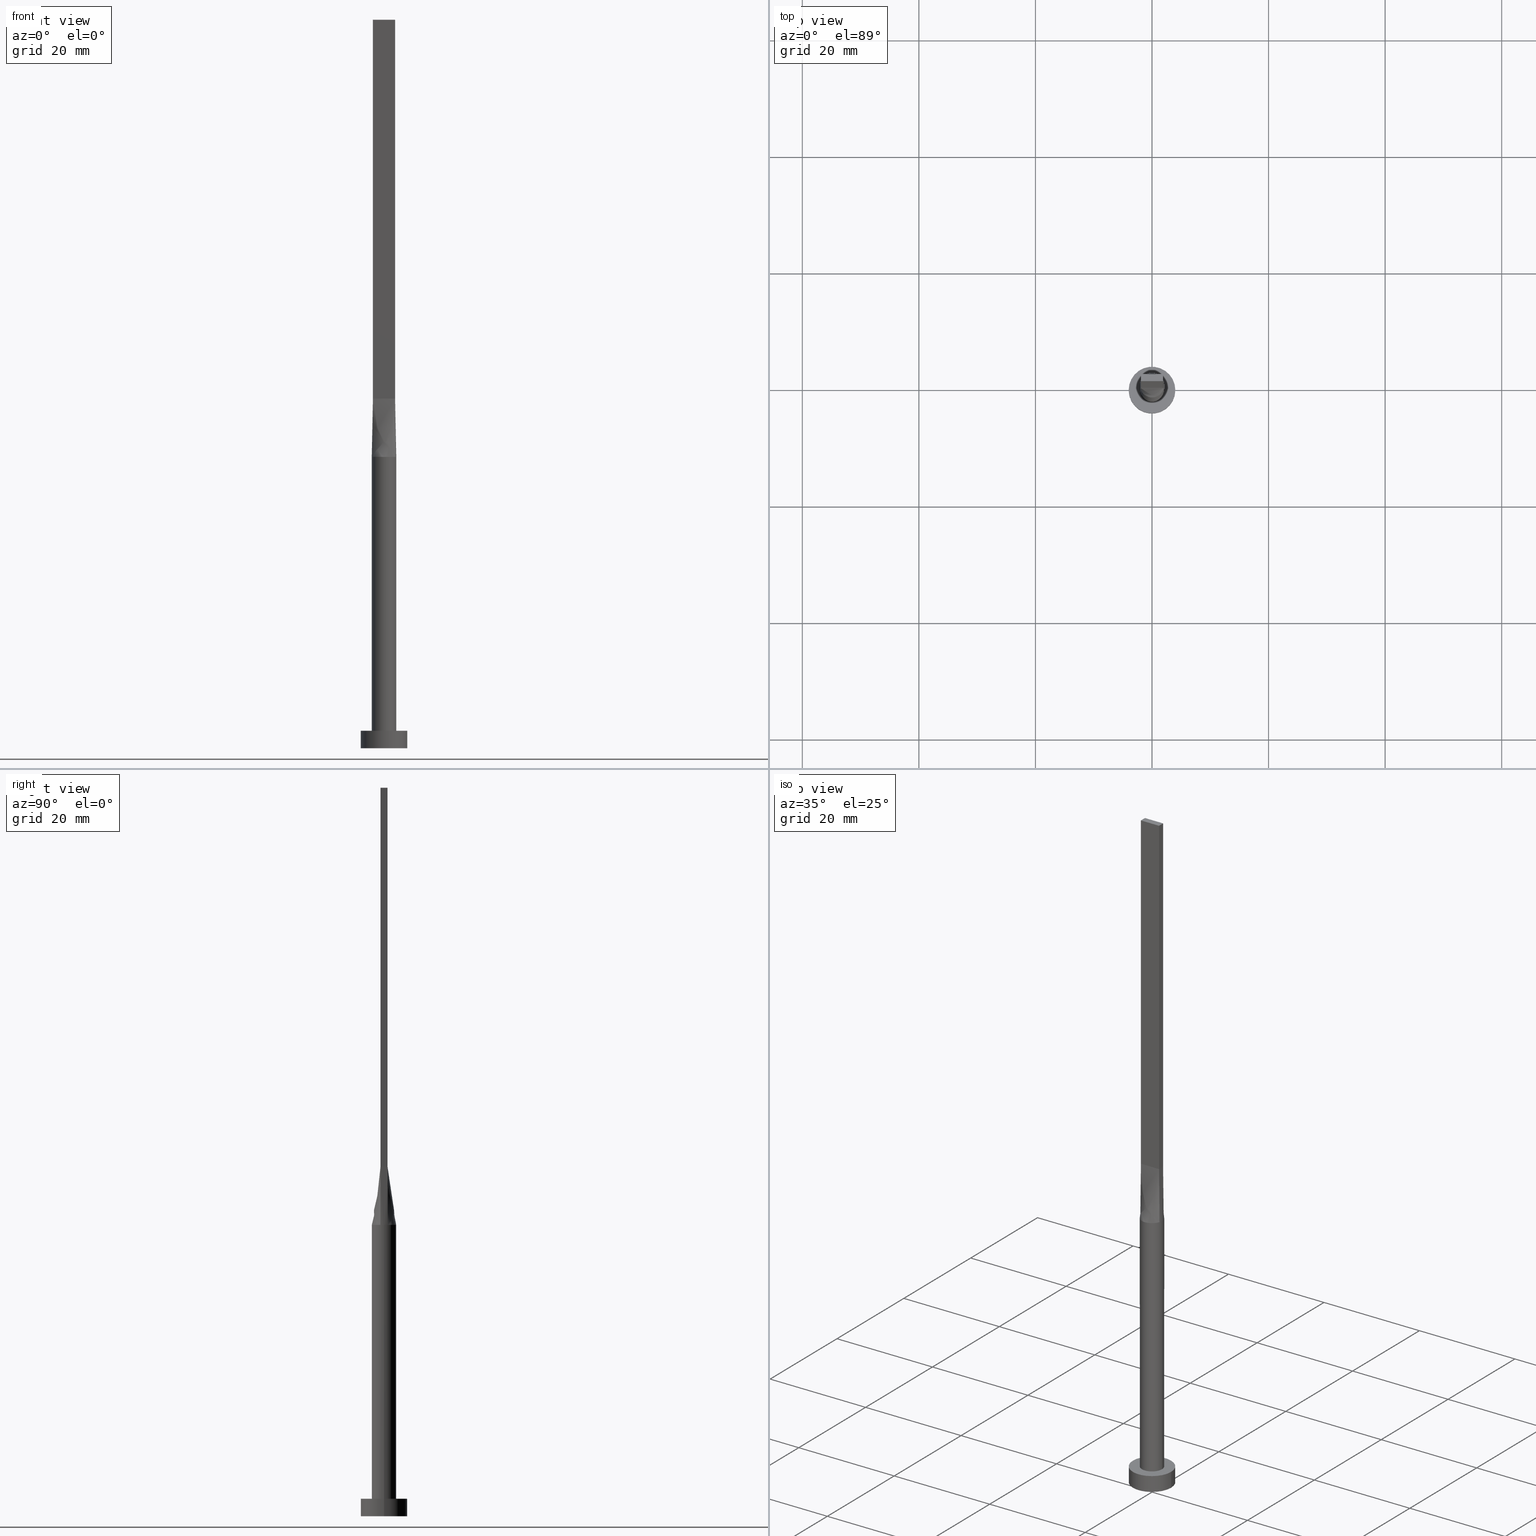
[diagram: canonical four-view strip — front | top / right | iso, engineering-drawing reading convention]
A machine part, canonical four-view strip (front | top / right | iso — engineering-drawing reading convention). The complete STEP part file that produces these views, byte-faithful:
ISO-10303-21;
HEADER;
FILE_DESCRIPTION (( 'STEP AP203' ),
    '1' );
FILE_NAME ('9fb5.STEP',
    '2023-02-13T11:24:17',
    ( '' ),
    ( '' ),
    'SwSTEP 2.0',
    'SolidWorks 2019',
    '' );
FILE_SCHEMA (( 'CONFIG_CONTROL_DESIGN' ));
ENDSEC;

DATA;
#1 = EDGE_CURVE ( 'NONE', #111, #281, #47, .T. ) ;
#2 = CARTESIAN_POINT ( 'NONE',  ( 0.000000000000000000, 0.000000000000000000, 3.000000000000000000 ) ) ;
#3 = ORIENTED_EDGE ( 'NONE', *, *, #518, .T. ) ;
#4 = ADVANCED_FACE ( 'NONE', ( #68 ), #58, .T. ) ;
#5 = CARTESIAN_POINT ( 'NONE',  ( -0.3166666666666642094, -0.5999999999999996447, 60.00000000000000000 ) ) ;
#6 = ORIENTED_EDGE ( 'NONE', *, *, #461, .T. ) ;
#7 = LINE ( 'NONE', #376, #448 ) ;
#8 = APPLICATION_CONTEXT ( 'configuration controlled 3d designs of mechanical parts and assemblies' ) ;
#9 = CYLINDRICAL_SURFACE ( 'NONE', #352, 2.100000000000000089 ) ;
#10 = CARTESIAN_POINT ( 'NONE',  ( -1.266666666666664831, -0.5999999999999996447, 60.00000000000000000 ) ) ;
#11 = APPROVAL ( #87, 'NEUR�EN�' ) ;
#12 = DIRECTION ( 'NONE',  ( 5.706327223607920020E-17, 1.000000000000000000, -0.000000000000000000 ) ) ;
#13 = AXIS2_PLACEMENT_3D ( 'NONE', #572, #199, #297 ) ;
#14 = VERTEX_POINT ( 'NONE', #28 ) ;
#15 = ORIENTED_EDGE ( 'NONE', *, *, #1, .F. ) ;
#16 = CARTESIAN_POINT ( 'NONE',  ( -0.5124799074986362557, 2.051574327850739454, 50.00000000000000000 ) ) ;
#17 = CARTESIAN_POINT ( 'NONE',  ( 2.002523596781697890, -0.6323758726679050701, 50.00000000000000000 ) ) ;
#18 = EDGE_LOOP ( 'NONE', ( #174, #410 ) ) ;
#19 = DIRECTION ( 'NONE',  ( -1.000000000000000000, -0.000000000000000000, -0.000000000000000000 ) ) ;
#20 = CARTESIAN_POINT ( 'NONE',  ( 0.3166666666666688168, -0.5999999999999996447, 60.00000000000000000 ) ) ;
#21 = CYLINDRICAL_SURFACE ( 'NONE', #407, 4.000000000000000000 ) ;
#22 = VERTEX_POINT ( 'NONE', #385 ) ;
#23 = COORDINATED_UNIVERSAL_TIME_OFFSET ( 1, 0, .AHEAD. ) ;
#24 = DIRECTION ( 'NONE',  ( 1.000000000000000000, 0.000000000000000000, 0.000000000000000000 ) ) ;
#25 = VECTOR ( 'NONE', #160, 1000.000000000000114 ) ;
#26 = EDGE_CURVE ( 'NONE', #263, #111, #539, .T. ) ;
#27 = ORIENTED_EDGE ( 'NONE', *, *, #178, .T. ) ;
#28 = CARTESIAN_POINT ( 'NONE',  ( -4.000000000000000000, 0.000000000000000000, 3.000000000000000000 ) ) ;
#29 = ORIENTED_EDGE ( 'NONE', *, *, #419, .F. ) ;
#30 = DIRECTION ( 'NONE',  ( 0.000000000000000000, -1.000000000000000000, 0.000000000000000000 ) ) ;
#31 = ORIENTED_EDGE ( 'NONE', *, *, #48, .F. ) ;
#32 = PERSON_AND_ORGANIZATION_ROLE ( 'classification_officer' ) ;
#33 = EDGE_CURVE ( 'NONE', #14, #285, #214, .T. ) ;
#34 = CARTESIAN_POINT ( 'NONE',  ( 0.5124799074986362557, 2.051574327850739454, 50.00000000000000711 ) ) ;
#35 = AXIS2_PLACEMENT_3D ( 'NONE', #220, #543, #396 ) ;
#36 = EDGE_LOOP ( 'NONE', ( #278, #435, #554, #320, #258 ) ) ;
#37 = CARTESIAN_POINT ( 'NONE',  ( 0.000000000000000000, 0.000000000000000000, 0.000000000000000000 ) ) ;
#38 = ORIENTED_EDGE ( 'NONE', *, *, #33, .T. ) ;
#39 = EDGE_CURVE ( 'NONE', #126, #111, #172, .T. ) ;
#40 = EDGE_LOOP ( 'NONE', ( #273, #460, #38, #100 ) ) ;
#41 = DIRECTION ( 'NONE',  ( -5.421010862427522170E-16, -1.000000000000000000, 0.000000000000000000 ) ) ;
#42 = EDGE_CURVE ( 'NONE', #263, #298, #336, .T. ) ;
#43 = LOCAL_TIME ( 12, 24, 17.00000000000000000, #275 ) ;
#44 = CIRCLE ( 'NONE', #512, 4.000000000000000000 ) ;
#45 = CIRCLE ( 'NONE', #394, 2.100000000000000089 ) ;
#46 = DIRECTION ( 'NONE',  ( -0.000000000000000000, -0.000000000000000000, -1.000000000000000000 ) ) ;
#47 = LINE ( 'NONE', #474, #272 ) ;
#48 = EDGE_CURVE ( 'NONE', #22, #576, #437, .T. ) ;
#49 = PLANE ( 'NONE',  #265 ) ;
#50 = ORIENTED_EDGE ( 'NONE', *, *, #526, .T. ) ;
#51 = AXIS2_PLACEMENT_3D ( 'NONE', #355, #167, #123 ) ;
#52 = DIRECTION ( 'NONE',  ( 1.000000000000000000, -1.776356839400250465E-15, 0.000000000000000000 ) ) ;
#53 = CARTESIAN_POINT ( 'NONE',  ( -0.1583333333333310500, -0.5999999999999996447, 60.00000000000000000 ) ) ;
#54 = PRODUCT_DEFINITION_SHAPE ( 'NONE', 'NONE',  #241 ) ;
#55 = DIRECTION ( 'NONE',  ( 0.000000000000000000, 0.000000000000000000, 1.000000000000000000 ) ) ;
#56 = CIRCLE ( 'NONE', #423, 4.000000000000000000 ) ;
#57 = DIRECTION ( 'NONE',  ( 1.000000000000000000, 0.000000000000000000, 0.000000000000000000 ) ) ;
#58 = CYLINDRICAL_SURFACE ( 'NONE', #208, 2.100000000000000089 ) ;
#59 = CARTESIAN_POINT ( 'NONE',  ( -2.099999999999999645, 0.2158003972066311338, 50.00000000000000711 ) ) ;
#60 = DIRECTION ( 'NONE',  ( -0.000000000000000000, -0.000000000000000000, -1.000000000000000000 ) ) ;
#61 = DIRECTION ( 'NONE',  ( -0.01025176717979719640, 0.003237400162041168764, 0.9999422085850171449 ) ) ;
#62 = CARTESIAN_POINT ( 'NONE',  ( 1.899999999999999689, -0.1999999999999992339, 60.00000000000000000 ) ) ;
#63 = ORIENTED_EDGE ( 'NONE', *, *, #549, .T. ) ;
#64 = CIRCLE ( 'NONE', #299, 4.000000000000000000 ) ;
#65 = CARTESIAN_POINT ( 'NONE',  ( -1.899999999999999689, 0.6000000000000001998, 60.00000000000000711 ) ) ;
#66 = DIRECTION ( 'NONE',  ( 0.000000000000000000, 0.000000000000000000, 1.000000000000000000 ) ) ;
#67 = APPROVAL ( #510, 'NEUR�EN�' ) ;
#68 = FACE_OUTER_BOUND ( 'NONE', #473, .T. ) ;
#69 = CARTESIAN_POINT ( 'NONE',  ( 1.108333333333334281, -0.5999999999999996447, 60.00000000000000000 ) ) ;
#70 = VERTEX_POINT ( 'NONE', #276 ) ;
#71 = ORGANIZATION ( 'NEUR�EN�', 'NEUR�EN�', '' ) ;
#72 = CARTESIAN_POINT ( 'NONE',  ( -0.1583333333333324378, 0.6000000000000000888, 60.00000000000001421 ) ) ;
#73 = CARTESIAN_POINT ( 'NONE',  ( 1.899999999999999023, -0.5999999999999997558, 125.0000000000000000 ) ) ;
#74 = CARTESIAN_POINT ( 'NONE',  ( 1.266666666666667274, -0.5999999999999996447, 60.00000000000000000 ) ) ;
#75 = PERSON_AND_ORGANIZATION ( #514, #71 ) ;
#76 = CARTESIAN_POINT ( 'NONE',  ( -1.741666666666666252, 0.6000000000000000888, 60.00000000000000000 ) ) ;
#77 = CARTESIAN_POINT ( 'NONE',  ( -1.899999999999999689, 0.6000000000000001998, 60.00000000000000711 ) ) ;
#78 = VERTEX_POINT ( 'NONE', #77 ) ;
#79 = EDGE_CURVE ( 'NONE', #366, #359, #267, .T. ) ;
#80 = PERSON_AND_ORGANIZATION ( #514, #71 ) ;
#81 = CALENDAR_DATE ( 2023, 13, 2 ) ;
#82 = ORIENTED_EDGE ( 'NONE', *, *, #89, .F. ) ;
#83 = APPLICATION_PROTOCOL_DEFINITION ( 'international standard', 'config_control_design', 1994, #424 ) ;
#84 = COORDINATED_UNIVERSAL_TIME_OFFSET ( 1, 0, .AHEAD. ) ;
#85 = CARTESIAN_POINT ( 'NONE',  ( 1.266666666666667274, 0.6000000000000000888, 60.00000000000000711 ) ) ;
#86 = VERTEX_POINT ( 'NONE', #417 ) ;
#87 = APPROVAL_STATUS ( 'not_yet_approved' ) ;
#88 = VECTOR ( 'NONE', #334, 1000.000000000000000 ) ;
#89 = EDGE_CURVE ( 'NONE', #359, #286, #463, .T. ) ;
#90 = ORIENTED_EDGE ( 'NONE', *, *, #284, .T. ) ;
#91 = AXIS2_PLACEMENT_3D ( 'NONE', #256, #347, #442 ) ;
#92 = ADVANCED_FACE ( 'NONE', ( #508 ), #277, .T. ) ;
#93 = B_SPLINE_SURFACE_WITH_KNOTS ( 'NONE', 3, 1, ( 
 ( #472, #239 ),
 ( #331, #425 ),
 ( #287, #246 ),
 ( #243, #10 ),
 ( #203, #375 ),
 ( #478, #383 ),
 ( #104, #95 ),
 ( #386, #5 ),
 ( #428, #53 ),
 ( #372, #249 ),
 ( #434, #20 ),
 ( #300, #447 ),
 ( #343, #491 ),
 ( #449, #69 ),
 ( #215, #74 ),
 ( #402, #349 ),
 ( #527, #110 ),
 ( #337, #332 ) ),
 .UNSPECIFIED., .F., .F., .F.,
 ( 4, 2, 2, 2, 2, 2, 2, 2, 4 ),
 ( 2, 2 ),
 ( 0.000000000000000000, 0.1250000000000000833, 0.2500000000000001110, 0.3750000000000001110, 0.5000000000000001110, 0.6250000000000001110, 0.7500000000000000000, 0.8750000000000000000, 1.000000000000000000 ),
 ( 0.000000000000000000, 1.000000000000000000 ),
 .UNSPECIFIED. ) ;
#94 = CARTESIAN_POINT ( 'NONE',  ( -0.9765948449220482885, 1.875594675604967509, 49.99999999999999289 ) ) ;
#95 = CARTESIAN_POINT ( 'NONE',  ( -0.6333333333333307502, -0.5999999999999996447, 60.00000000000000000 ) ) ;
#96 = EDGE_LOOP ( 'NONE', ( #63, #393, #312, #380 ) ) ;
#97 = DIRECTION ( 'NONE',  ( -1.807003620809174632E-16, -1.000000000000000000, 0.000000000000000000 ) ) ;
#98 = LOCAL_TIME ( 12, 24, 17.00000000000000000, #23 ) ;
#99 = VECTOR ( 'NONE', #97, 1000.000000000000000 ) ;
#100 = ORIENTED_EDGE ( 'NONE', *, *, #464, .T. ) ;
#101 = CARTESIAN_POINT ( 'NONE',  ( 1.899999999999999023, -0.5999999999999997558, 125.0000000000000000 ) ) ;
#102 = PRODUCT ( '9fb5', '9fb5', '', ( #416 ) ) ;
#103 = DIRECTION ( 'NONE',  ( -1.000000000000000000, 0.000000000000000000, 0.000000000000000000 ) ) ;
#104 = CARTESIAN_POINT ( 'NONE',  ( -0.9765948449220485106, -1.875594675604967509, 50.00000000000000711 ) ) ;
#105 = FACE_OUTER_BOUND ( 'NONE', #505, .T. ) ;
#106 = LINE ( 'NONE', #261, #25 ) ;
#107 = AXIS2_PLACEMENT_3D ( 'NONE', #445, #12, #536 ) ;
#108 = CARTESIAN_POINT ( 'NONE',  ( -1.899999999999999689, -0.3999999999999998557, 60.00000000000000000 ) ) ;
#109 = CARTESIAN_POINT ( 'NONE',  ( 1.899999999999999023, -0.5999999999999997558, 125.0000000000000000 ) ) ;
#110 = CARTESIAN_POINT ( 'NONE',  ( 1.741666666666666030, -0.5999999999999997558, 60.00000000000000000 ) ) ;
#111 = VERTEX_POINT ( 'NONE', #363 ) ;
#112 = CARTESIAN_POINT ( 'NONE',  ( -1.899999999999999467, 0.1999999999999998446, 60.00000000000000000 ) ) ;
#113 = VECTOR ( 'NONE', #340, 1000.000000000000000 ) ;
#114 = CARTESIAN_POINT ( 'NONE',  ( 2.065999667310664645, -0.4313683159928419775, 50.00000000000001421 ) ) ;
#115 = ORIENTED_EDGE ( 'NONE', *, *, #325, .F. ) ;
#116 = EDGE_CURVE ( 'NONE', #328, #282, #395, .T. ) ;
#117 = DIRECTION ( 'NONE',  ( -0.000000000000000000, -0.000000000000000000, -1.000000000000000000 ) ) ;
#118 = CARTESIAN_POINT ( 'NONE',  ( 1.899999999999999689, 0.6000000000000001998, 125.0000000000000000 ) ) ;
#119 = DIRECTION ( 'NONE',  ( -1.000000000000000000, 0.000000000000000000, 0.000000000000000000 ) ) ;
#120 = CARTESIAN_POINT ( 'NONE',  ( 1.878511276496548366, 0.9591670956957804028, 50.00000000000000000 ) ) ;
#121 = CARTESIAN_POINT ( 'NONE',  ( -1.952271707612931895, 0.7915068550356629817, 49.99999999999999289 ) ) ;
#122 = EDGE_LOOP ( 'NONE', ( #191, #27, #338, #224 ) ) ;
#123 = DIRECTION ( 'NONE',  ( 1.000000000000000000, 0.000000000000000000, 0.000000000000000000 ) ) ;
#124 = PLANE ( 'NONE',  #321 ) ;
#125 = ADVANCED_FACE ( 'NONE', ( #513 ), #9, .T. ) ;
#126 = VERTEX_POINT ( 'NONE', #153 ) ;
#127 = MANIFOLD_SOLID_BREP ( 'P�idat vysunut�m5', #187 ) ;
#128 = CARTESIAN_POINT ( 'NONE',  ( 0.9765948449220478444, 1.875594675604967065, 49.99999999999999289 ) ) ;
#129 = PERSON_AND_ORGANIZATION ( #514, #71 ) ;
#130 = DIRECTION ( 'NONE',  ( -0.000000000000000000, -0.000000000000000000, -1.000000000000000000 ) ) ;
#131 = CARTESIAN_POINT ( 'NONE',  ( -1.899999999999999689, 0.6000000000000001998, 125.0000000000000000 ) ) ;
#132 = DIRECTION ( 'NONE',  ( 0.000000000000000000, 0.000000000000000000, 1.000000000000000000 ) ) ;
#133 = ORIENTED_EDGE ( 'NONE', *, *, #537, .F. ) ;
#134 = DIRECTION ( 'NONE',  ( 1.000000000000000000, 0.000000000000000000, 0.000000000000000000 ) ) ;
#135 = EDGE_CURVE ( 'NONE', #14, #86, #44, .T. ) ;
#136 = CARTESIAN_POINT ( 'NONE',  ( 0.2565105576742081062, 2.100000000000000533, 50.00000000000001421 ) ) ;
#137 = DIRECTION ( 'NONE',  ( -0.000000000000000000, -0.000000000000000000, -1.000000000000000000 ) ) ;
#138 = VERTEX_POINT ( 'NONE', #553 ) ;
#139 = VECTOR ( 'NONE', #181, 1000.000000000000000 ) ;
#140 = EDGE_LOOP ( 'NONE', ( #341, #456, #176, #15, #216 ) ) ;
#141 = EDGE_CURVE ( 'NONE', #374, #366, #294, .T. ) ;
#142 = DIRECTION ( 'NONE',  ( 0.000000000000000000, 0.000000000000000000, 1.000000000000000000 ) ) ;
#143 = CARTESIAN_POINT ( 'NONE',  ( 0.000000000000000000, 0.000000000000000000, 0.000000000000000000 ) ) ;
#144 = CARTESIAN_POINT ( 'NONE',  ( 2.100000000000000089, 2.571758278209441957E-16, 3.000000000000000000 ) ) ;
#145 = CIRCLE ( 'NONE', #171, 2.100000000000000089 ) ;
#146 = EDGE_CURVE ( 'NONE', #138, #328, #378, .T. ) ;
#147 = DIRECTION ( 'NONE',  ( -1.000000000000000000, 5.421010862427522170E-16, 0.000000000000000000 ) ) ;
#148 = CARTESIAN_POINT ( 'NONE',  ( -2.100000000000000089, -1.284268198382905442E-16, 50.00000000000000000 ) ) ;
#149 = CARTESIAN_POINT ( 'NONE',  ( 2.002523596781697890, 0.6323758726679047371, 50.00000000000000000 ) ) ;
#150 = ORIENTED_EDGE ( 'NONE', *, *, #325, .T. ) ;
#151 = CARTESIAN_POINT ( 'NONE',  ( 1.899999999999999689, 0.6000000000000001998, 60.00000000000000711 ) ) ;
#152 = B_SPLINE_SURFACE_WITH_KNOTS ( 'NONE', 3, 1, ( 
 ( #17, #210 ),
 ( #114, #397 ),
 ( #565, #62 ),
 ( #574, #476 ),
 ( #563, #257 ),
 ( #149, #157 ) ),
 .UNSPECIFIED., .F., .F., .F.,
 ( 4, 2, 4 ),
 ( 2, 2 ),
 ( 0.000000000000000000, 0.5000000000000000000, 1.000000000000000000 ),
 ( 0.000000000000000000, 1.000000000000000000 ),
 .UNSPECIFIED. ) ;
#153 = CARTESIAN_POINT ( 'NONE',  ( -1.899999999999999911, -0.5999999999999995337, 60.00000000000000711 ) ) ;
#154 = DIRECTION ( 'NONE',  ( -1.000000000000000000, 0.000000000000000000, 0.000000000000000000 ) ) ;
#155 = CARTESIAN_POINT ( 'NONE',  ( -1.952271707612931895, 0.7915068550356629817, 49.99999999999999289 ) ) ;
#156 = ADVANCED_BREP_SHAPE_REPRESENTATION ( '9fb5', ( #127, #468 ), #542 ) ;
#157 = CARTESIAN_POINT ( 'NONE',  ( 1.899999999999999689, 0.6000000000000001998, 60.00000000000000711 ) ) ;
#158 = DIRECTION ( 'NONE',  ( 1.000000000000000000, 0.000000000000000000, 0.000000000000000000 ) ) ;
#159 = CARTESIAN_POINT ( 'NONE',  ( 4.000000000000000000, 4.898587196589412829E-16, 3.000000000000000000 ) ) ;
#160 = DIRECTION ( 'NONE',  ( -0.01025176717979708711, -0.003237400162041179606, 0.9999422085850171449 ) ) ;
#161 = ADVANCED_FACE ( 'NONE', ( #197 ), #152, .T. ) ;
#162 = AXIS2_PLACEMENT_3D ( 'NONE', #2, #564, #103 ) ;
#163 = CARTESIAN_POINT ( 'NONE',  ( -1.899999999999999911, -0.5999999999999995337, 60.00000000000000711 ) ) ;
#164 = CARTESIAN_POINT ( 'NONE',  ( 0.9765948449220478444, 1.875594675604967065, 49.99999999999999289 ) ) ;
#165 = VECTOR ( 'NONE', #494, 1000.000000000000000 ) ;
#166 = ORIENTED_EDGE ( 'NONE', *, *, #486, .T. ) ;
#167 = DIRECTION ( 'NONE',  ( 0.000000000000000000, 0.000000000000000000, 1.000000000000000000 ) ) ;
#168 = CARTESIAN_POINT ( 'NONE',  ( -1.266666666666665941, 0.6000000000000000888, 60.00000000000000000 ) ) ;
#169 = CARTESIAN_POINT ( 'NONE',  ( 0.000000000000000000, 0.000000000000000000, 3.000000000000000000 ) ) ;
#170 = ORIENTED_EDGE ( 'NONE', *, *, #250, .F. ) ;
#171 = AXIS2_PLACEMENT_3D ( 'NONE', #367, #55, #158 ) ;
#172 = LINE ( 'NONE', #346, #165 ) ;
#173 = LINE ( 'NONE', #118, #113 ) ;
#174 = ORIENTED_EDGE ( 'NONE', *, *, #464, .F. ) ;
#175 = CARTESIAN_POINT ( 'NONE',  ( 1.529462611013499451, 1.456669187245239527, 50.00000000000000711 ) ) ;
#176 = ORIENTED_EDGE ( 'NONE', *, *, #201, .T. ) ;
#177 = CARTESIAN_POINT ( 'NONE',  ( 0.2565105576742081062, 2.100000000000000533, 50.00000000000001421 ) ) ;
#178 = EDGE_CURVE ( 'NONE', #374, #78, #292, .T. ) ;
#179 = CARTESIAN_POINT ( 'NONE',  ( 2.100000000000000089, 2.571758278209441957E-16, 50.00000000000000000 ) ) ;
#180 = CARTESIAN_POINT ( 'NONE',  ( 1.899999999999999689, 0.6000000000000001998, 60.00000000000000711 ) ) ;
#181 = DIRECTION ( 'NONE',  ( -0.000000000000000000, -0.000000000000000000, -1.000000000000000000 ) ) ;
#182 = APPROVAL ( #489, 'NEUR�EN�' ) ;
#183 = LINE ( 'NONE', #414, #139 ) ;
#184 = EDGE_LOOP ( 'NONE', ( #528, #189, #306, #150 ) ) ;
#185 = DATE_AND_TIME ( #226, #315 ) ;
#186 = ORIENTED_EDGE ( 'NONE', *, *, #146, .T. ) ;
#187 = CLOSED_SHELL ( 'NONE', ( #125, #92, #193, #377, #555, #4, #318, #161, #451, #502, #507, #269, #441, #390, #227 ) ) ;
#188 = ORIENTED_EDGE ( 'NONE', *, *, #302, .T. ) ;
#189 = ORIENTED_EDGE ( 'NONE', *, *, #26, .F. ) ;
#190 = B_SPLINE_SURFACE_WITH_KNOTS ( 'NONE', 3, 1, ( 
 ( #198, #65 ),
 ( #567, #335 ),
 ( #59, #112 ),
 ( #440, #295 ),
 ( #388, #108 ),
 ( #570, #163 ) ),
 .UNSPECIFIED., .F., .F., .F.,
 ( 4, 2, 4 ),
 ( 2, 2 ),
 ( 0.000000000000000000, 0.5000000000000000000, 1.000000000000000000 ),
 ( 0.000000000000000000, 1.000000000000000000 ),
 .UNSPECIFIED. ) ;
#191 = ORIENTED_EDGE ( 'NONE', *, *, #537, .T. ) ;
#192 = CARTESIAN_POINT ( 'NONE',  ( 2.002626276893244128, -0.6324088233005202841, 50.00000000000000000 ) ) ;
#193 = ADVANCED_FACE ( 'NONE', ( #443 ), #21, .T. ) ;
#194 = CARTESIAN_POINT ( 'NONE',  ( 0.000000000000000000, 0.000000000000000000, 50.00000000000000000 ) ) ;
#195 = B_SPLINE_SURFACE_WITH_KNOTS ( 'NONE', 3, 1, ( 
 ( #581, #180 ),
 ( #262, #453 ),
 ( #356, #575 ),
 ( #548, #85 ),
 ( #175, #546 ),
 ( #552, #266 ),
 ( #128, #307 ),
 ( #34, #222 ),
 ( #177, #499 ),
 ( #270, #72 ),
 ( #16, #541 ),
 ( #259, #538 ),
 ( #490, #487 ),
 ( #384, #573 ),
 ( #492, #168 ),
 ( #534, #255 ),
 ( #121, #76 ),
 ( #213, #399 ) ),
 .UNSPECIFIED., .F., .F., .F.,
 ( 4, 2, 2, 2, 2, 2, 2, 2, 4 ),
 ( 2, 2 ),
 ( 0.000000000000000000, 0.1249999999999999167, 0.2499999999999998890, 0.3749999999999998335, 0.4999999999999998890, 0.6249999999999998890, 0.7499999999999998890, 0.8750000000000000000, 1.000000000000000000 ),
 ( 0.000000000000000000, 1.000000000000000000 ),
 .UNSPECIFIED. ) ;
#196 = LOCAL_TIME ( 12, 24, 17.00000000000000000, #309 ) ;
#197 = FACE_OUTER_BOUND ( 'NONE', #140, .T. ) ;
#198 = CARTESIAN_POINT ( 'NONE',  ( -2.002523596781697890, 0.6323758726679048481, 50.00000000000000000 ) ) ;
#199 = DIRECTION ( 'NONE',  ( 0.000000000000000000, 0.000000000000000000, 1.000000000000000000 ) ) ;
#200 = DIRECTION ( 'NONE',  ( 1.000000000000000000, 0.000000000000000000, 0.000000000000000000 ) ) ;
#201 = EDGE_CURVE ( 'NONE', #545, #281, #106, .T. ) ;
#202 = CARTESIAN_POINT ( 'NONE',  ( -1.667357759214464830, 1.291791096182927534, 50.00000000000000000 ) ) ;
#203 = CARTESIAN_POINT ( 'NONE',  ( -1.529462611013499229, -1.456669187245239749, 49.99999999999999289 ) ) ;
#204 = CARTESIAN_POINT ( 'NONE',  ( 1.529462611013499451, 1.456669187245239527, 50.00000000000000711 ) ) ;
#205 = CARTESIAN_POINT ( 'NONE',  ( 0.000000000000000000, 0.000000000000000000, 0.000000000000000000 ) ) ;
#206 = DIRECTION ( 'NONE',  ( -0.000000000000000000, -0.000000000000000000, -1.000000000000000000 ) ) ;
#207 = CC_DESIGN_APPROVAL ( #11, ( #481 ) ) ;
#208 = AXIS2_PLACEMENT_3D ( 'NONE', #209, #389, #154 ) ;
#209 = CARTESIAN_POINT ( 'NONE',  ( 0.000000000000000000, 0.000000000000000000, 50.00000000000000000 ) ) ;
#210 = CARTESIAN_POINT ( 'NONE',  ( 1.899999999999999911, -0.5999999999999997558, 60.00000000000000711 ) ) ;
#211 = CC_DESIGN_DATE_AND_TIME_ASSIGNMENT ( #373, #480, ( #304 ) ) ;
#212 = CARTESIAN_POINT ( 'NONE',  ( 1.184262492297964098, 1.748903470433445628, 49.99999999999998579 ) ) ;
#213 = CARTESIAN_POINT ( 'NONE',  ( -2.002523596781697890, 0.6323758726679044040, 50.00000000000000000 ) ) ;
#214 = LINE ( 'NONE', #400, #392 ) ;
#215 = CARTESIAN_POINT ( 'NONE',  ( 1.667357759214464830, -1.291791096182927534, 50.00000000000000711 ) ) ;
#216 = ORIENTED_EDGE ( 'NONE', *, *, #369, .F. ) ;
#217 = B_SPLINE_CURVE_WITH_KNOTS ( 'NONE', 3,
 ( #219, #310, #120, #459, #204, #212, #164, #533, #136, #234, #323, #94, #317, #471, #202, #519, #155, #391 ),
 .UNSPECIFIED., .F., .F.,
 ( 4, 2, 2, 2, 2, 2, 2, 2, 4 ),
 ( 0.000000000000000000, 0.1249999999999999167, 0.2499999999999998890, 0.3749999999999998335, 0.4999999999999998890, 0.6249999999999998890, 0.7499999999999998890, 0.8750000000000000000, 1.000000000000000000 ),
 .UNSPECIFIED. ) ;
#218 = APPROVAL_DATE_TIME ( #344, #11 ) ;
#219 = CARTESIAN_POINT ( 'NONE',  ( 2.002598039528881380, 0.6323997261616642884, 50.00000000000000000 ) ) ;
#220 = CARTESIAN_POINT ( 'NONE',  ( 0.000000000000000000, 0.000000000000000000, 50.00000000000000000 ) ) ;
#221 = APPROVAL_ROLE ( '' ) ;
#222 = CARTESIAN_POINT ( 'NONE',  ( 0.3166666666666677621, 0.6000000000000000888, 60.00000000000000000 ) ) ;
#223 = DIRECTION ( 'NONE',  ( 1.000000000000000000, 0.000000000000000000, -0.000000000000000000 ) ) ;
#224 = ORIENTED_EDGE ( 'NONE', *, *, #201, .F. ) ;
#225 = FACE_OUTER_BOUND ( 'NONE', #439, .T. ) ;
#226 = CALENDAR_DATE ( 2023, 13, 2 ) ;
#227 = ADVANCED_FACE ( 'NONE', ( #547 ), #530, .T. ) ;
#228 = DIRECTION ( 'NONE',  ( 1.807003620809174632E-16, 1.000000000000000000, 0.000000000000000000 ) ) ;
#229 = VECTOR ( 'NONE', #60, 1000.000000000000000 ) ;
#230 = CARTESIAN_POINT ( 'NONE',  ( -1.899999999999999911, -0.5999999999999995337, 125.0000000000000000 ) ) ;
#231 = APPROVAL_PERSON_ORGANIZATION ( #252, #182, #305 ) ;
#232 = CALENDAR_DATE ( 2023, 13, 2 ) ;
#233 = EDGE_CURVE ( 'NONE', #298, #22, #173, .T. ) ;
#234 = CARTESIAN_POINT ( 'NONE',  ( -0.2565105576742073845, 2.100000000000000533, 50.00000000000000711 ) ) ;
#235 = DATE_TIME_ROLE ( 'creation_date' ) ;
#236 = CARTESIAN_POINT ( 'NONE',  ( 1.899999999999999689, 0.6000000000000001998, 125.0000000000000000 ) ) ;
#237 = APPROVAL_PERSON_ORGANIZATION ( #129, #67, #221 ) ;
#238 = ORIENTED_EDGE ( 'NONE', *, *, #284, .F. ) ;
#239 = CARTESIAN_POINT ( 'NONE',  ( -1.899999999999999911, -0.5999999999999995337, 60.00000000000000711 ) ) ;
#240 = AXIS2_PLACEMENT_3D ( 'NONE', #382, #142, #57 ) ;
#241 = PRODUCT_DEFINITION ( 'NEZN�M�', '', #481, #431 ) ;
#242 = ORIENTED_EDGE ( 'NONE', *, *, #116, .F. ) ;
#243 = CARTESIAN_POINT ( 'NONE',  ( -1.667357759214464386, -1.291791096182926424, 49.99999999999999289 ) ) ;
#244 = VECTOR ( 'NONE', #523, 1000.000000000000114 ) ;
#245 = DIRECTION ( 'NONE',  ( -1.807003620809174139E-16, 1.000000000000000000, -0.000000000000000000 ) ) ;
#246 = CARTESIAN_POINT ( 'NONE',  ( -1.583333333333332149, -0.5999999999999995337, 60.00000000000000000 ) ) ;
#247 = DIRECTION ( 'NONE',  ( 0.000000000000000000, 0.000000000000000000, 1.000000000000000000 ) ) ;
#248 = EDGE_LOOP ( 'NONE', ( #170, #90, #421, #535, #426, #133 ) ) ;
#249 = CARTESIAN_POINT ( 'NONE',  ( 0.1583333333333354631, -0.5999999999999996447, 60.00000000000000000 ) ) ;
#250 = EDGE_CURVE ( 'NONE', #282, #545, #458, .T. ) ;
#251 = DIRECTION ( 'NONE',  ( -1.000000000000000000, 0.000000000000000000, 0.000000000000000000 ) ) ;
#252 = PERSON_AND_ORGANIZATION ( #514, #71 ) ;
#253 = DIRECTION ( 'NONE',  ( 0.000000000000000000, -0.000000000000000000, -1.000000000000000000 ) ) ;
#254 = ORIENTED_EDGE ( 'NONE', *, *, #39, .F. ) ;
#255 = CARTESIAN_POINT ( 'NONE',  ( -1.583333333333332815, 0.6000000000000000888, 60.00000000000000000 ) ) ;
#256 = CARTESIAN_POINT ( 'NONE',  ( 0.000000000000000000, 0.000000000000000000, 125.0000000000000000 ) ) ;
#257 = CARTESIAN_POINT ( 'NONE',  ( 1.899999999999999467, 0.4000000000000005218, 60.00000000000000000 ) ) ;
#258 = ORIENTED_EDGE ( 'NONE', *, *, #178, .F. ) ;
#259 = CARTESIAN_POINT ( 'NONE',  ( -0.9765948449220482885, 1.875594675604967509, 49.99999999999999289 ) ) ;
#260 = PRODUCT_RELATED_PRODUCT_CATEGORY ( 'detail', '', ( #102 ) ) ;
#261 = CARTESIAN_POINT ( 'NONE',  ( 1.951261798390848901, 0.6161879363339524129, 55.00000000000000711 ) ) ;
#262 = CARTESIAN_POINT ( 'NONE',  ( 1.952271707612931895, 0.7915068550356627597, 50.00000000000000711 ) ) ;
#263 = VERTEX_POINT ( 'NONE', #497 ) ;
#264 = PERSON_AND_ORGANIZATION_ROLE ( 'design_supplier' ) ;
#265 = AXIS2_PLACEMENT_3D ( 'NONE', #520, #247, #429 ) ;
#266 = CARTESIAN_POINT ( 'NONE',  ( 0.7916666666666677399, 0.6000000000000000888, 60.00000000000000000 ) ) ;
#267 = LINE ( 'NONE', #455, #279 ) ;
#268 = PERSON_AND_ORGANIZATION_ROLE ( 'design_owner' ) ;
#269 = ADVANCED_FACE ( 'NONE', ( #225 ), #350, .F. ) ;
#270 = CARTESIAN_POINT ( 'NONE',  ( -0.2565105576742073845, 2.100000000000000533, 50.00000000000000711 ) ) ;
#271 = CARTESIAN_POINT ( 'NONE',  ( -1.899999999999999911, -0.5999999999999995337, 125.0000000000000000 ) ) ;
#272 = VECTOR ( 'NONE', #245, 1000.000000000000000 ) ;
#273 = ORIENTED_EDGE ( 'NONE', *, *, #518, .F. ) ;
#274 = APPROVAL_DATE_TIME ( #185, #67 ) ;
#275 = COORDINATED_UNIVERSAL_TIME_OFFSET ( 1, 0, .AHEAD. ) ;
#276 = CARTESIAN_POINT ( 'NONE',  ( 4.000000000000000000, 4.898587196589412829E-16, 0.000000000000000000 ) ) ;
#277 = CYLINDRICAL_SURFACE ( 'NONE', #162, 4.000000000000000000 ) ;
#278 = ORIENTED_EDGE ( 'NONE', *, *, #141, .T. ) ;
#279 = VECTOR ( 'NONE', #130, 1000.000000000000000 ) ;
#280 = CARTESIAN_POINT ( 'NONE',  ( 2.100000000000000089, 3.372022381799045987E-17, 50.00000000000000000 ) ) ;
#281 = VERTEX_POINT ( 'NONE', #151 ) ;
#282 = VERTEX_POINT ( 'NONE', #280 ) ;
#283 = DIRECTION ( 'NONE',  ( 0.000000000000000000, 0.000000000000000000, 1.000000000000000000 ) ) ;
#284 = EDGE_CURVE ( 'NONE', #282, #286, #506, .T. ) ;
#285 = VERTEX_POINT ( 'NONE', #465 ) ;
#286 = VERTEX_POINT ( 'NONE', #144 ) ;
#287 = CARTESIAN_POINT ( 'NONE',  ( -1.878511276496548144, -0.9591670956957798477, 50.00000000000000000 ) ) ;
#288 = CC_DESIGN_PERSON_AND_ORGANIZATION_ASSIGNMENT ( #75, #32, ( #304 ) ) ;
#289 = PLANE ( 'NONE',  #580 ) ;
#290 = DIRECTION ( 'NONE',  ( 5.421010862427522170E-16, 1.000000000000000000, 0.000000000000000000 ) ) ;
#291 = FACE_BOUND ( 'NONE', #430, .T. ) ;
#292 = LINE ( 'NONE', #484, #351 ) ;
#293 = ORIENTED_EDGE ( 'NONE', *, *, #33, .F. ) ;
#294 = CIRCLE ( 'NONE', #433, 2.100000000000000089 ) ;
#295 = CARTESIAN_POINT ( 'NONE',  ( -1.899999999999999689, -0.2000000000000000389, 60.00000000000000000 ) ) ;
#296 = CARTESIAN_POINT ( 'NONE',  ( 0.000000000000000000, 0.000000000000000000, 50.00000000000000000 ) ) ;
#297 = DIRECTION ( 'NONE',  ( 1.000000000000000000, 0.000000000000000000, 0.000000000000000000 ) ) ;
#298 = VERTEX_POINT ( 'NONE', #236 ) ;
#299 = AXIS2_PLACEMENT_3D ( 'NONE', #353, #503, #408 ) ;
#300 = CARTESIAN_POINT ( 'NONE',  ( 0.9765948449220478444, -1.875594675604967954, 50.00000000000000711 ) ) ;
#301 = CARTESIAN_POINT ( 'NONE',  ( -1.951261798390848901, -0.6161879363339519688, 55.00000000000000711 ) ) ;
#302 = EDGE_CURVE ( 'NONE', #70, #285, #56, .T. ) ;
#303 = ORIENTED_EDGE ( 'NONE', *, *, #578, .F. ) ;
#304 = SECURITY_CLASSIFICATION ( '', '', #540 ) ;
#305 = APPROVAL_ROLE ( '' ) ;
#306 = ORIENTED_EDGE ( 'NONE', *, *, #486, .F. ) ;
#307 = CARTESIAN_POINT ( 'NONE',  ( 0.6333333333333345250, 0.6000000000000000888, 60.00000000000000000 ) ) ;
#308 = EDGE_CURVE ( 'NONE', #366, #138, #45, .T. ) ;
#309 = COORDINATED_UNIVERSAL_TIME_OFFSET ( 1, 0, .AHEAD. ) ;
#310 = CARTESIAN_POINT ( 'NONE',  ( 1.952271707612931895, 0.7915068550356627597, 50.00000000000000711 ) ) ;
#311 = LINE ( 'NONE', #230, #411 ) ;
#312 = ORIENTED_EDGE ( 'NONE', *, *, #233, .F. ) ;
#313 = DIRECTION ( 'NONE',  ( 1.000000000000000000, -1.807003620809174632E-16, 0.000000000000000000 ) ) ;
#314 = PERSON_AND_ORGANIZATION ( #514, #71 ) ;
#315 = LOCAL_TIME ( 12, 24, 17.00000000000000000, #457 ) ;
#316 = VECTOR ( 'NONE', #290, 1000.000000000000000 ) ;
#317 = CARTESIAN_POINT ( 'NONE',  ( -1.184262492297963876, 1.748903470433446294, 50.00000000000000711 ) ) ;
#318 = ADVANCED_FACE ( 'NONE', ( #517 ), #93, .T. ) ;
#319 = DIRECTION ( 'NONE',  ( -1.807003620809174632E-16, -1.000000000000000000, 0.000000000000000000 ) ) ;
#320 = ORIENTED_EDGE ( 'NONE', *, *, #330, .F. ) ;
#321 = AXIS2_PLACEMENT_3D ( 'NONE', #454, #30, #253 ) ;
#322 = DIRECTION ( 'NONE',  ( 0.000000000000000000, 0.000000000000000000, 1.000000000000000000 ) ) ;
#323 = CARTESIAN_POINT ( 'NONE',  ( -0.5124799074986362557, 2.051574327850739454, 50.00000000000000000 ) ) ;
#324 =( NAMED_UNIT ( * ) SI_UNIT ( $, .STERADIAN. ) SOLID_ANGLE_UNIT ( ) );
#325 = EDGE_CURVE ( 'NONE', #576, #126, #531, .T. ) ;
#326 = VECTOR ( 'NONE', #117, 1000.000000000000000 ) ;
#327 = CC_DESIGN_APPROVAL ( #182, ( #304 ) ) ;
#328 = VERTEX_POINT ( 'NONE', #192 ) ;
#329 = LINE ( 'NONE', #569, #99 ) ;
#330 = EDGE_CURVE ( 'NONE', #78, #126, #329, .T. ) ;
#331 = CARTESIAN_POINT ( 'NONE',  ( -1.952271707612931895, -0.7915068550356626487, 50.00000000000000711 ) ) ;
#332 = CARTESIAN_POINT ( 'NONE',  ( 1.899999999999999023, -0.5999999999999997558, 60.00000000000000711 ) ) ;
#333 = CARTESIAN_POINT ( 'NONE',  ( 0.000000000000000000, 0.000000000000000000, 3.000000000000000000 ) ) ;
#334 = DIRECTION ( 'NONE',  ( -0.000000000000000000, -0.000000000000000000, -1.000000000000000000 ) ) ;
#335 = CARTESIAN_POINT ( 'NONE',  ( -1.899999999999999467, 0.3999999999999999112, 60.00000000000000000 ) ) ;
#336 = LINE ( 'NONE', #109, #316 ) ;
#337 = CARTESIAN_POINT ( 'NONE',  ( 2.002523596781698334, -0.6323758726679041819, 50.00000000000000000 ) ) ;
#338 = ORIENTED_EDGE ( 'NONE', *, *, #549, .F. ) ;
#339 = LINE ( 'NONE', #532, #326 ) ;
#340 = DIRECTION ( 'NONE',  ( -1.000000000000000000, 0.000000000000000000, 0.000000000000000000 ) ) ;
#341 = ORIENTED_EDGE ( 'NONE', *, *, #116, .T. ) ;
#342 = CARTESIAN_POINT ( 'NONE',  ( -1.899999999999999689, 0.6000000000000001998, 60.00000000000000711 ) ) ;
#343 = CARTESIAN_POINT ( 'NONE',  ( 1.184262492297964320, -1.748903470433446961, 50.00000000000001421 ) ) ;
#344 = DATE_AND_TIME ( #452, #196 ) ;
#345 = FACE_OUTER_BOUND ( 'NONE', #96, .T. ) ;
#346 = CARTESIAN_POINT ( 'NONE',  ( -1.899999999999999911, -0.5999999999999995337, 60.00000000000000711 ) ) ;
#347 = DIRECTION ( 'NONE',  ( 0.000000000000000000, 0.000000000000000000, 1.000000000000000000 ) ) ;
#348 = FACE_OUTER_BOUND ( 'NONE', #18, .T. ) ;
#349 = CARTESIAN_POINT ( 'NONE',  ( 1.583333333333333259, -0.5999999999999996447, 60.00000000000000000 ) ) ;
#350 = PLANE ( 'NONE',  #368 ) ;
#351 = VECTOR ( 'NONE', #522, 1000.000000000000114 ) ;
#352 = AXIS2_PLACEMENT_3D ( 'NONE', #194, #137, #251 ) ;
#353 = CARTESIAN_POINT ( 'NONE',  ( 0.000000000000000000, 0.000000000000000000, 0.000000000000000000 ) ) ;
#354 = CC_DESIGN_PERSON_AND_ORGANIZATION_ASSIGNMENT ( #577, #268, ( #102 ) ) ;
#355 = CARTESIAN_POINT ( 'NONE',  ( 0.000000000000000000, 0.000000000000000000, 3.000000000000000000 ) ) ;
#356 = CARTESIAN_POINT ( 'NONE',  ( 1.878511276496548366, 0.9591670956957804028, 50.00000000000000000 ) ) ;
#357 = LINE ( 'NONE', #342, #477 ) ;
#358 = APPROVAL_DATE_TIME ( #462, #182 ) ;
#359 = VERTEX_POINT ( 'NONE', #475 ) ;
#360 = LOCAL_TIME ( 12, 24, 17.00000000000000000, #84 ) ;
#361 = VECTOR ( 'NONE', #556, 1000.000000000000000 ) ;
#362 = APPLICATION_PROTOCOL_DEFINITION ( 'international standard', 'config_control_design', 1994, #8 ) ;
#363 = CARTESIAN_POINT ( 'NONE',  ( 1.899999999999999023, -0.5999999999999997558, 60.00000000000000711 ) ) ;
#364 = ORIENTED_EDGE ( 'NONE', *, *, #526, .F. ) ;
#365 =( NAMED_UNIT ( * ) PLANE_ANGLE_UNIT ( ) SI_UNIT ( $, .RADIAN. ) );
#366 = VERTEX_POINT ( 'NONE', #148 ) ;
#367 = CARTESIAN_POINT ( 'NONE',  ( 0.000000000000000000, 0.000000000000000000, 3.000000000000000000 ) ) ;
#368 = AXIS2_PLACEMENT_3D ( 'NONE', #131, #313, #228 ) ;
#369 = EDGE_CURVE ( 'NONE', #328, #111, #7, .T. ) ;
#370 = PERSON_AND_ORGANIZATION ( #514, #71 ) ;
#371 = ORIENTED_EDGE ( 'NONE', *, *, #79, .T. ) ;
#372 = CARTESIAN_POINT ( 'NONE',  ( 0.2565105576742072735, -2.100000000000000533, 50.00000000000000711 ) ) ;
#373 = DATE_AND_TIME ( #412, #360 ) ;
#374 = VERTEX_POINT ( 'NONE', #521 ) ;
#375 = CARTESIAN_POINT ( 'NONE',  ( -1.108333333333331172, -0.5999999999999996447, 60.00000000000000000 ) ) ;
#376 = CARTESIAN_POINT ( 'NONE',  ( 1.951261798390848901, -0.6161879363339519688, 55.00000000000000711 ) ) ;
#377 = ADVANCED_FACE ( 'NONE', ( #291, #105 ), #49, .T. ) ;
#378 = CIRCLE ( 'NONE', #13, 2.100000000000000089 ) ;
#379 = DIRECTION ( 'NONE',  ( 1.000000000000000000, 0.000000000000000000, 0.000000000000000000 ) ) ;
#380 = ORIENTED_EDGE ( 'NONE', *, *, #578, .T. ) ;
#381 = FACE_OUTER_BOUND ( 'NONE', #184, .T. ) ;
#382 = CARTESIAN_POINT ( 'NONE',  ( 0.000000000000000000, 0.000000000000000000, 3.000000000000000000 ) ) ;
#383 = CARTESIAN_POINT ( 'NONE',  ( -0.7916666666666642982, -0.5999999999999996447, 60.00000000000000000 ) ) ;
#384 = CARTESIAN_POINT ( 'NONE',  ( -1.529462611013499451, 1.456669187245239527, 50.00000000000000000 ) ) ;
#385 = CARTESIAN_POINT ( 'NONE',  ( -1.899999999999999689, 0.6000000000000001998, 125.0000000000000000 ) ) ;
#386 = CARTESIAN_POINT ( 'NONE',  ( -0.5124799074986365888, -2.051574327850738566, 50.00000000000000711 ) ) ;
#387 = ORIENTED_EDGE ( 'NONE', *, *, #42, .F. ) ;
#388 = CARTESIAN_POINT ( 'NONE',  ( -2.065999667310664645, -0.4313683159928413113, 50.00000000000000711 ) ) ;
#389 = DIRECTION ( 'NONE',  ( -0.000000000000000000, -0.000000000000000000, -1.000000000000000000 ) ) ;
#390 = ADVANCED_FACE ( 'NONE', ( #483 ), #289, .F. ) ;
#391 = CARTESIAN_POINT ( 'NONE',  ( -2.002622288503867587, 0.6324075186587619912, 50.00000000000000000 ) ) ;
#392 = VECTOR ( 'NONE', #525, 1000.000000000000000 ) ;
#393 = ORIENTED_EDGE ( 'NONE', *, *, #461, .F. ) ;
#394 = AXIS2_PLACEMENT_3D ( 'NONE', #438, #482, #379 ) ;
#395 = CIRCLE ( 'NONE', #501, 2.100000000000000089 ) ;
#396 = DIRECTION ( 'NONE',  ( 1.000000000000000000, 0.000000000000000000, 0.000000000000000000 ) ) ;
#397 = CARTESIAN_POINT ( 'NONE',  ( 1.899999999999999689, -0.3999999999999993561, 60.00000000000000000 ) ) ;
#398 = APPROVAL_ROLE ( '' ) ;
#399 = CARTESIAN_POINT ( 'NONE',  ( -1.899999999999999689, 0.6000000000000001998, 60.00000000000000711 ) ) ;
#400 = CARTESIAN_POINT ( 'NONE',  ( -4.000000000000000000, 0.000000000000000000, 3.000000000000000000 ) ) ;
#401 = AXIS2_PLACEMENT_3D ( 'NONE', #205, #132, #223 ) ;
#402 = CARTESIAN_POINT ( 'NONE',  ( 1.878511276496548366, -0.9591670956957810690, 50.00000000000000711 ) ) ;
#403 = ORIENTED_EDGE ( 'NONE', *, *, #233, .T. ) ;
#404 = CC_DESIGN_PERSON_AND_ORGANIZATION_ASSIGNMENT ( #80, #551, ( #481 ) ) ;
#405 = DIRECTION ( 'NONE',  ( 1.000000000000000000, -5.706327223607920020E-17, 0.000000000000000000 ) ) ;
#406 = CC_DESIGN_APPROVAL ( #67, ( #241 ) ) ;
#407 = AXIS2_PLACEMENT_3D ( 'NONE', #169, #206, #119 ) ;
#408 = DIRECTION ( 'NONE',  ( 1.000000000000000000, 0.000000000000000000, 0.000000000000000000 ) ) ;
#409 = ORIENTED_EDGE ( 'NONE', *, *, #42, .T. ) ;
#410 = ORIENTED_EDGE ( 'NONE', *, *, #302, .F. ) ;
#411 = VECTOR ( 'NONE', #405, 1000.000000000000000 ) ;
#412 = CALENDAR_DATE ( 2023, 13, 2 ) ;
#413 = FACE_OUTER_BOUND ( 'NONE', #122, .T. ) ;
#414 = CARTESIAN_POINT ( 'NONE',  ( 1.899999999999999689, 0.6000000000000001998, 125.0000000000000000 ) ) ;
#415 = CC_DESIGN_PERSON_AND_ORGANIZATION_ASSIGNMENT ( #370, #559, ( #241 ) ) ;
#416 = MECHANICAL_CONTEXT ( 'NONE', #424, 'mechanical' ) ;
#417 = CARTESIAN_POINT ( 'NONE',  ( 4.000000000000000000, 4.898587196589412829E-16, 3.000000000000000000 ) ) ;
#418 = CARTESIAN_POINT ( 'NONE',  ( 0.000000000000000000, 0.000000000000000000, 50.00000000000000000 ) ) ;
#419 = EDGE_CURVE ( 'NONE', #286, #359, #145, .T. ) ;
#420 = ORIENTED_EDGE ( 'NONE', *, *, #308, .F. ) ;
#421 = ORIENTED_EDGE ( 'NONE', *, *, #419, .T. ) ;
#422 = VECTOR ( 'NONE', #319, 1000.000000000000000 ) ;
#423 = AXIS2_PLACEMENT_3D ( 'NONE', #143, #283, #516 ) ;
#424 = APPLICATION_CONTEXT ( 'configuration controlled 3d designs of mechanical parts and assemblies' ) ;
#425 = CARTESIAN_POINT ( 'NONE',  ( -1.741666666666666030, -0.5999999999999995337, 60.00000000000000000 ) ) ;
#426 = ORIENTED_EDGE ( 'NONE', *, *, #141, .F. ) ;
#427 = EDGE_CURVE ( 'NONE', #126, #138, #436, .T. ) ;
#428 = CARTESIAN_POINT ( 'NONE',  ( -0.2565105576742081062, -2.100000000000000089, 50.00000000000000711 ) ) ;
#429 = DIRECTION ( 'NONE',  ( 1.000000000000000000, 0.000000000000000000, -0.000000000000000000 ) ) ;
#430 = EDGE_LOOP ( 'NONE', ( #82, #29 ) ) ;
#431 = DESIGN_CONTEXT ( 'detailed design', #8, 'design' ) ;
#432 = PLANE ( 'NONE',  #107 ) ;
#433 = AXIS2_PLACEMENT_3D ( 'NONE', #296, #66, #24 ) ;
#434 = CARTESIAN_POINT ( 'NONE',  ( 0.5124799074986360337, -2.051574327850739454, 50.00000000000000000 ) ) ;
#435 = ORIENTED_EDGE ( 'NONE', *, *, #308, .T. ) ;
#436 = LINE ( 'NONE', #301, #244 ) ;
#437 = LINE ( 'NONE', #529, #422 ) ;
#438 = CARTESIAN_POINT ( 'NONE',  ( 0.000000000000000000, 0.000000000000000000, 50.00000000000000000 ) ) ;
#439 = EDGE_LOOP ( 'NONE', ( #467, #115, #31, #6 ) ) ;
#440 = CARTESIAN_POINT ( 'NONE',  ( -2.100000000000000089, -0.2158003972066306064, 49.99999999999997868 ) ) ;
#441 = ADVANCED_FACE ( 'NONE', ( #381 ), #432, .F. ) ;
#442 = DIRECTION ( 'NONE',  ( 1.000000000000000000, 0.000000000000000000, -0.000000000000000000 ) ) ;
#443 = FACE_OUTER_BOUND ( 'NONE', #40, .T. ) ;
#444 = EDGE_LOOP ( 'NONE', ( #403, #515, #166, #409 ) ) ;
#445 = CARTESIAN_POINT ( 'NONE',  ( -1.899999999999999911, -0.5999999999999995337, 125.0000000000000000 ) ) ;
#446 = CC_DESIGN_SECURITY_CLASSIFICATION ( #304, ( #481 ) ) ;
#447 = CARTESIAN_POINT ( 'NONE',  ( 0.6333333333333351911, -0.5999999999999996447, 60.00000000000000000 ) ) ;
#448 = VECTOR ( 'NONE', #61, 1000.000000000000114 ) ;
#449 = CARTESIAN_POINT ( 'NONE',  ( 1.529462611013499229, -1.456669187245239971, 50.00000000000000711 ) ) ;
#450 = ORIENTED_EDGE ( 'NONE', *, *, #146, .F. ) ;
#451 = ADVANCED_FACE ( 'NONE', ( #479 ), #190, .T. ) ;
#452 = CALENDAR_DATE ( 2023, 13, 2 ) ;
#453 = CARTESIAN_POINT ( 'NONE',  ( 1.741666666666666696, 0.6000000000000001998, 60.00000000000001421 ) ) ;
#454 = CARTESIAN_POINT ( 'NONE',  ( 1.899999999999999689, 0.6000000000000001998, 125.0000000000000000 ) ) ;
#455 = CARTESIAN_POINT ( 'NONE',  ( -2.100000000000000089, 0.000000000000000000, 50.00000000000000000 ) ) ;
#456 = ORIENTED_EDGE ( 'NONE', *, *, #250, .T. ) ;
#457 = COORDINATED_UNIVERSAL_TIME_OFFSET ( 1, 0, .AHEAD. ) ;
#458 = CIRCLE ( 'NONE', #35, 2.100000000000000089 ) ;
#459 = CARTESIAN_POINT ( 'NONE',  ( 1.667357759214464608, 1.291791096182927090, 50.00000000000000000 ) ) ;
#460 = ORIENTED_EDGE ( 'NONE', *, *, #135, .F. ) ;
#461 = EDGE_CURVE ( 'NONE', #22, #78, #339, .T. ) ;
#462 = DATE_AND_TIME ( #81, #98 ) ;
#463 = CIRCLE ( 'NONE', #240, 2.100000000000000089 ) ;
#464 = EDGE_CURVE ( 'NONE', #285, #70, #64, .T. ) ;
#465 = CARTESIAN_POINT ( 'NONE',  ( -4.000000000000000000, 0.000000000000000000, 0.000000000000000000 ) ) ;
#466 =( LENGTH_UNIT ( ) NAMED_UNIT ( * ) SI_UNIT ( .MILLI., .METRE. ) );
#467 = ORIENTED_EDGE ( 'NONE', *, *, #330, .T. ) ;
#468 = AXIS2_PLACEMENT_3D ( 'NONE', #37, #550, #134 ) ;
#469 = VECTOR ( 'NONE', #46, 1000.000000000000000 ) ;
#470 = EDGE_LOOP ( 'NONE', ( #498, #303, #387, #560 ) ) ;
#471 = CARTESIAN_POINT ( 'NONE',  ( -1.529462611013499451, 1.456669187245239527, 50.00000000000000000 ) ) ;
#472 = CARTESIAN_POINT ( 'NONE',  ( -2.002523596781697890, -0.6323758726679042930, 50.00000000000000000 ) ) ;
#473 = EDGE_LOOP ( 'NONE', ( #238, #242, #450, #420, #371, #485 ) ) ;
#474 = CARTESIAN_POINT ( 'NONE',  ( 1.899999999999999689, 0.6000000000000001998, 60.00000000000000711 ) ) ;
#475 = CARTESIAN_POINT ( 'NONE',  ( -2.100000000000000089, 0.000000000000000000, 3.000000000000000000 ) ) ;
#476 = CARTESIAN_POINT ( 'NONE',  ( 1.899999999999999467, 0.2000000000000007050, 60.00000000000000000 ) ) ;
#477 = VECTOR ( 'NONE', #19, 1000.000000000000000 ) ;
#478 = CARTESIAN_POINT ( 'NONE',  ( -1.184262492297964098, -1.748903470433446294, 49.99999999999999289 ) ) ;
#479 = FACE_OUTER_BOUND ( 'NONE', #36, .T. ) ;
#480 = DATE_TIME_ROLE ( 'classification_date' ) ;
#481 = PRODUCT_DEFINITION_FORMATION_WITH_SPECIFIED_SOURCE ( 'LIBOVOLN�', '', #102, .NOT_KNOWN. ) ;
#482 = DIRECTION ( 'NONE',  ( 0.000000000000000000, 0.000000000000000000, 1.000000000000000000 ) ) ;
#483 = FACE_OUTER_BOUND ( 'NONE', #470, .T. ) ;
#484 = CARTESIAN_POINT ( 'NONE',  ( -1.951261798390848901, 0.6161879363339521909, 55.00000000000000711 ) ) ;
#485 = ORIENTED_EDGE ( 'NONE', *, *, #89, .T. ) ;
#486 = EDGE_CURVE ( 'NONE', #576, #263, #311, .T. ) ;
#487 = CARTESIAN_POINT ( 'NONE',  ( -0.7916666666666655194, 0.6000000000000000888, 60.00000000000000000 ) ) ;
#488 = CARTESIAN_POINT ( 'NONE',  ( -1.899999999999999911, -0.5999999999999995337, 125.0000000000000000 ) ) ;
#489 = APPROVAL_STATUS ( 'not_yet_approved' ) ;
#490 = CARTESIAN_POINT ( 'NONE',  ( -1.184262492297963876, 1.748903470433446294, 50.00000000000000711 ) ) ;
#491 = CARTESIAN_POINT ( 'NONE',  ( 0.7916666666666681840, -0.5999999999999996447, 60.00000000000000000 ) ) ;
#492 = CARTESIAN_POINT ( 'NONE',  ( -1.667357759214464830, 1.291791096182927534, 50.00000000000000000 ) ) ;
#493 = CC_DESIGN_DATE_AND_TIME_ASSIGNMENT ( #511, #235, ( #241 ) ) ;
#494 = DIRECTION ( 'NONE',  ( 1.000000000000000000, -5.706327223607918787E-17, 0.000000000000000000 ) ) ;
#495 = ORIENTED_EDGE ( 'NONE', *, *, #369, .T. ) ;
#496 = UNCERTAINTY_MEASURE_WITH_UNIT (LENGTH_MEASURE( 1.000000000000000082E-05 ), #466, 'distance_accuracy_value', 'NONE');
#497 = CARTESIAN_POINT ( 'NONE',  ( 1.899999999999999023, -0.5999999999999997558, 125.0000000000000000 ) ) ;
#498 = ORIENTED_EDGE ( 'NONE', *, *, #1, .T. ) ;
#499 = CARTESIAN_POINT ( 'NONE',  ( 0.1583333333333342696, 0.6000000000000000888, 60.00000000000000711 ) ) ;
#500 = EDGE_LOOP ( 'NONE', ( #364, #3, #188, #293 ) ) ;
#501 = AXIS2_PLACEMENT_3D ( 'NONE', #418, #322, #52 ) ;
#502 = ADVANCED_FACE ( 'NONE', ( #413 ), #195, .T. ) ;
#503 = DIRECTION ( 'NONE',  ( 0.000000000000000000, 0.000000000000000000, 1.000000000000000000 ) ) ;
#504 = SHAPE_DEFINITION_REPRESENTATION ( #54, #156 ) ;
#505 = EDGE_LOOP ( 'NONE', ( #558, #50 ) ) ;
#506 = LINE ( 'NONE', #179, #361 ) ;
#507 = ADVANCED_FACE ( 'NONE', ( #345 ), #124, .F. ) ;
#508 = FACE_OUTER_BOUND ( 'NONE', #500, .T. ) ;
#509 = ORIENTED_EDGE ( 'NONE', *, *, #427, .T. ) ;
#510 = APPROVAL_STATUS ( 'not_yet_approved' ) ;
#511 = DATE_AND_TIME ( #232, #43 ) ;
#512 = AXIS2_PLACEMENT_3D ( 'NONE', #333, #524, #200 ) ;
#513 = FACE_OUTER_BOUND ( 'NONE', #248, .T. ) ;
#514 = PERSON ( 'NEUR�EN�', 'NEUR�EN�', 'NEUR�EN�', ('NEUR�EN�'), ('NEUR�EN�'), ('NEUR�EN�') ) ;
#515 = ORIENTED_EDGE ( 'NONE', *, *, #48, .T. ) ;
#516 = DIRECTION ( 'NONE',  ( 1.000000000000000000, 0.000000000000000000, 0.000000000000000000 ) ) ;
#517 = FACE_OUTER_BOUND ( 'NONE', #566, .T. ) ;
#518 = EDGE_CURVE ( 'NONE', #86, #70, #568, .T. ) ;
#519 = CARTESIAN_POINT ( 'NONE',  ( -1.878511276496549032, 0.9591670956957809580, 50.00000000000000711 ) ) ;
#520 = CARTESIAN_POINT ( 'NONE',  ( 0.000000000000000000, 0.000000000000000000, 3.000000000000000000 ) ) ;
#521 = CARTESIAN_POINT ( 'NONE',  ( -2.002622288503867587, 0.6324075186587619912, 50.00000000000000000 ) ) ;
#522 = DIRECTION ( 'NONE',  ( 0.01025176717979708711, -0.003237400162041147514, 0.9999422085850171449 ) ) ;
#523 = DIRECTION ( 'NONE',  ( -0.01025176717979706630, -0.003237400162041201290, -0.9999422085850171449 ) ) ;
#524 = DIRECTION ( 'NONE',  ( 0.000000000000000000, 0.000000000000000000, 1.000000000000000000 ) ) ;
#525 = DIRECTION ( 'NONE',  ( -0.000000000000000000, -0.000000000000000000, -1.000000000000000000 ) ) ;
#526 = EDGE_CURVE ( 'NONE', #86, #14, #562, .T. ) ;
#527 = CARTESIAN_POINT ( 'NONE',  ( 1.952271707612932339, -0.7915068550356634258, 50.00000000000000711 ) ) ;
#528 = ORIENTED_EDGE ( 'NONE', *, *, #39, .T. ) ;
#529 = CARTESIAN_POINT ( 'NONE',  ( -1.899999999999999689, 0.6000000000000001998, 125.0000000000000000 ) ) ;
#530 = PLANE ( 'NONE',  #91 ) ;
#531 = LINE ( 'NONE', #488, #469 ) ;
#532 = CARTESIAN_POINT ( 'NONE',  ( -1.899999999999999689, 0.6000000000000001998, 125.0000000000000000 ) ) ;
#533 = CARTESIAN_POINT ( 'NONE',  ( 0.5124799074986362557, 2.051574327850739454, 50.00000000000000711 ) ) ;
#534 = CARTESIAN_POINT ( 'NONE',  ( -1.878511276496549032, 0.9591670956957809580, 50.00000000000000711 ) ) ;
#535 = ORIENTED_EDGE ( 'NONE', *, *, #79, .F. ) ;
#536 = DIRECTION ( 'NONE',  ( -1.000000000000000000, 5.706327223607920020E-17, 0.000000000000000000 ) ) ;
#537 = EDGE_CURVE ( 'NONE', #545, #374, #217, .T. ) ;
#538 = CARTESIAN_POINT ( 'NONE',  ( -0.6333333333333321935, 0.6000000000000000888, 60.00000000000000000 ) ) ;
#539 = LINE ( 'NONE', #73, #88 ) ;
#540 = SECURITY_CLASSIFICATION_LEVEL ( 'unclassified' ) ;
#541 = CARTESIAN_POINT ( 'NONE',  ( -0.3166666666666655972, 0.6000000000000000888, 60.00000000000000711 ) ) ;
#542 =( GEOMETRIC_REPRESENTATION_CONTEXT ( 3 ) GLOBAL_UNCERTAINTY_ASSIGNED_CONTEXT ( ( #496 ) ) GLOBAL_UNIT_ASSIGNED_CONTEXT ( ( #466, #365, #324 ) ) REPRESENTATION_CONTEXT ( 'NONE', 'WORKASPACE' ) );
#543 = DIRECTION ( 'NONE',  ( 0.000000000000000000, 0.000000000000000000, 1.000000000000000000 ) ) ;
#544 = PLANE ( 'NONE',  #401 ) ;
#545 = VERTEX_POINT ( 'NONE', #571 ) ;
#546 = CARTESIAN_POINT ( 'NONE',  ( 1.108333333333334059, 0.6000000000000000888, 60.00000000000000000 ) ) ;
#547 = FACE_OUTER_BOUND ( 'NONE', #444, .T. ) ;
#548 = CARTESIAN_POINT ( 'NONE',  ( 1.667357759214464608, 1.291791096182927090, 50.00000000000000000 ) ) ;
#549 = EDGE_CURVE ( 'NONE', #281, #78, #357, .T. ) ;
#550 = DIRECTION ( 'NONE',  ( 0.000000000000000000, 0.000000000000000000, 1.000000000000000000 ) ) ;
#551 = PERSON_AND_ORGANIZATION_ROLE ( 'creator' ) ;
#552 = CARTESIAN_POINT ( 'NONE',  ( 1.184262492297964098, 1.748903470433445628, 49.99999999999998579 ) ) ;
#553 = CARTESIAN_POINT ( 'NONE',  ( -2.002601997802567535, -0.6324010168594718095, 50.00000000000000000 ) ) ;
#554 = ORIENTED_EDGE ( 'NONE', *, *, #427, .F. ) ;
#555 = ADVANCED_FACE ( 'NONE', ( #348 ), #544, .F. ) ;
#556 = DIRECTION ( 'NONE',  ( -0.000000000000000000, -0.000000000000000000, -1.000000000000000000 ) ) ;
#557 = APPROVAL_PERSON_ORGANIZATION ( #314, #11, #398 ) ;
#558 = ORIENTED_EDGE ( 'NONE', *, *, #135, .T. ) ;
#559 = PERSON_AND_ORGANIZATION_ROLE ( 'creator' ) ;
#560 = ORIENTED_EDGE ( 'NONE', *, *, #26, .T. ) ;
#561 = CC_DESIGN_PERSON_AND_ORGANIZATION_ASSIGNMENT ( #579, #264, ( #481 ) ) ;
#562 = CIRCLE ( 'NONE', #51, 4.000000000000000000 ) ;
#563 = CARTESIAN_POINT ( 'NONE',  ( 2.065999667310664645, 0.4313683159928415889, 50.00000000000000711 ) ) ;
#564 = DIRECTION ( 'NONE',  ( -0.000000000000000000, -0.000000000000000000, -1.000000000000000000 ) ) ;
#565 = CARTESIAN_POINT ( 'NONE',  ( 2.099999999999999645, -0.2158003972066312171, 50.00000000000000711 ) ) ;
#566 = EDGE_LOOP ( 'NONE', ( #186, #495, #254, #509 ) ) ;
#567 = CARTESIAN_POINT ( 'NONE',  ( -2.065999667310664645, 0.4313683159928417554, 50.00000000000001421 ) ) ;
#568 = LINE ( 'NONE', #159, #229 ) ;
#569 = CARTESIAN_POINT ( 'NONE',  ( -1.899999999999999689, 0.6000000000000001998, 60.00000000000000711 ) ) ;
#570 = CARTESIAN_POINT ( 'NONE',  ( -2.002523596781697890, -0.6323758726679044040, 50.00000000000000000 ) ) ;
#571 = CARTESIAN_POINT ( 'NONE',  ( 2.002598039528881380, 0.6323997261616642884, 50.00000000000000000 ) ) ;
#572 = CARTESIAN_POINT ( 'NONE',  ( 0.000000000000000000, 0.000000000000000000, 50.00000000000000000 ) ) ;
#573 = CARTESIAN_POINT ( 'NONE',  ( -1.108333333333332282, 0.6000000000000000888, 60.00000000000000000 ) ) ;
#574 = CARTESIAN_POINT ( 'NONE',  ( 2.100000000000000089, 0.2158003972066308285, 49.99999999999997868 ) ) ;
#575 = CARTESIAN_POINT ( 'NONE',  ( 1.583333333333333703, 0.6000000000000001998, 60.00000000000001421 ) ) ;
#576 = VERTEX_POINT ( 'NONE', #271 ) ;
#577 = PERSON_AND_ORGANIZATION ( #514, #71 ) ;
#578 = EDGE_CURVE ( 'NONE', #298, #281, #183, .T. ) ;
#579 = PERSON_AND_ORGANIZATION ( #514, #71 ) ;
#580 = AXIS2_PLACEMENT_3D ( 'NONE', #101, #147, #41 ) ;
#581 = CARTESIAN_POINT ( 'NONE',  ( 2.002523596781697890, 0.6323758726679044040, 50.00000000000000000 ) ) ;
ENDSEC;
END-ISO-10303-21;
